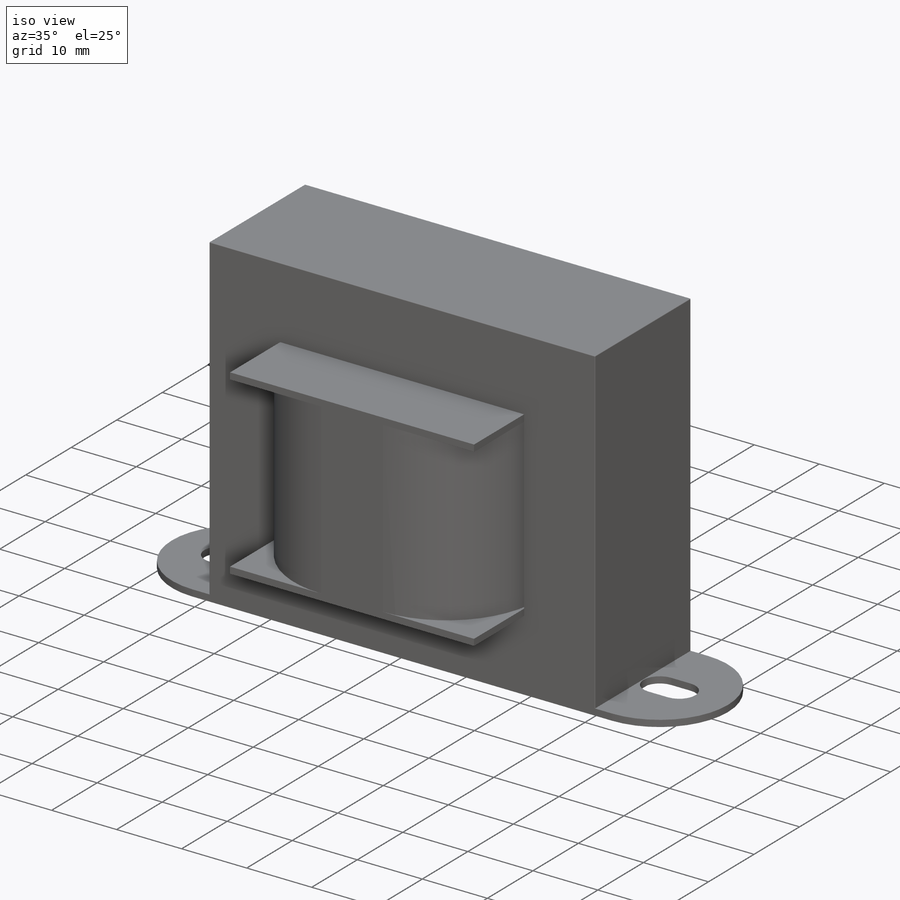
[diagram: iso view]
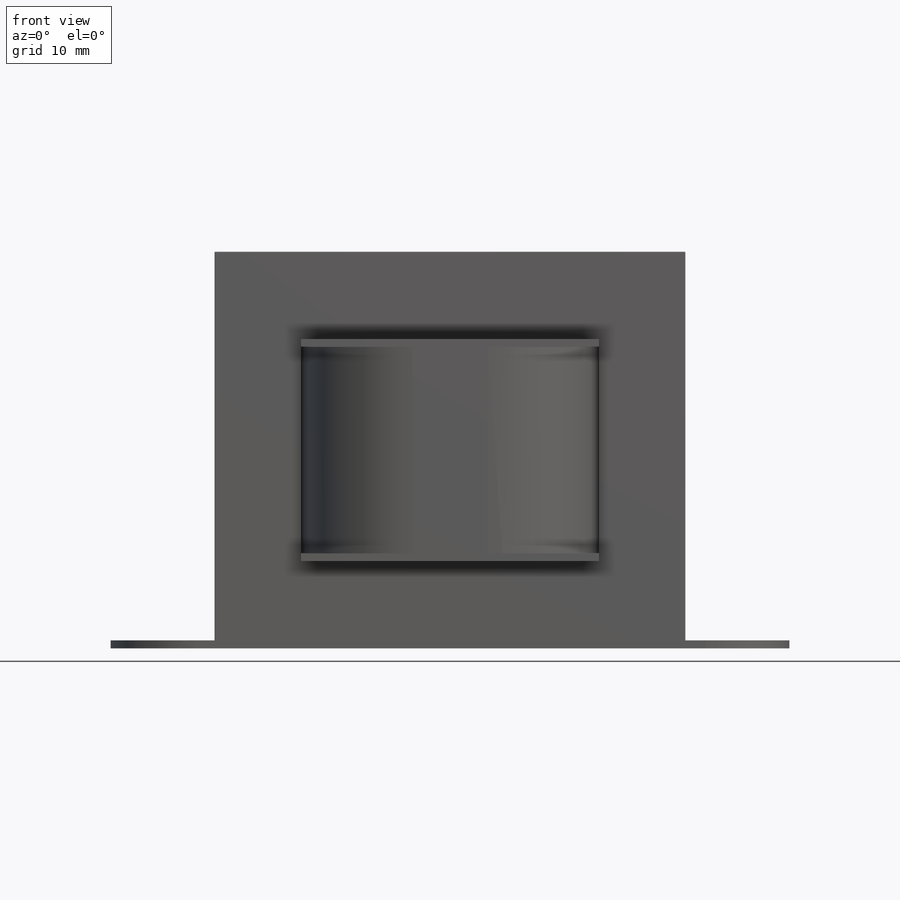
[diagram: front view]
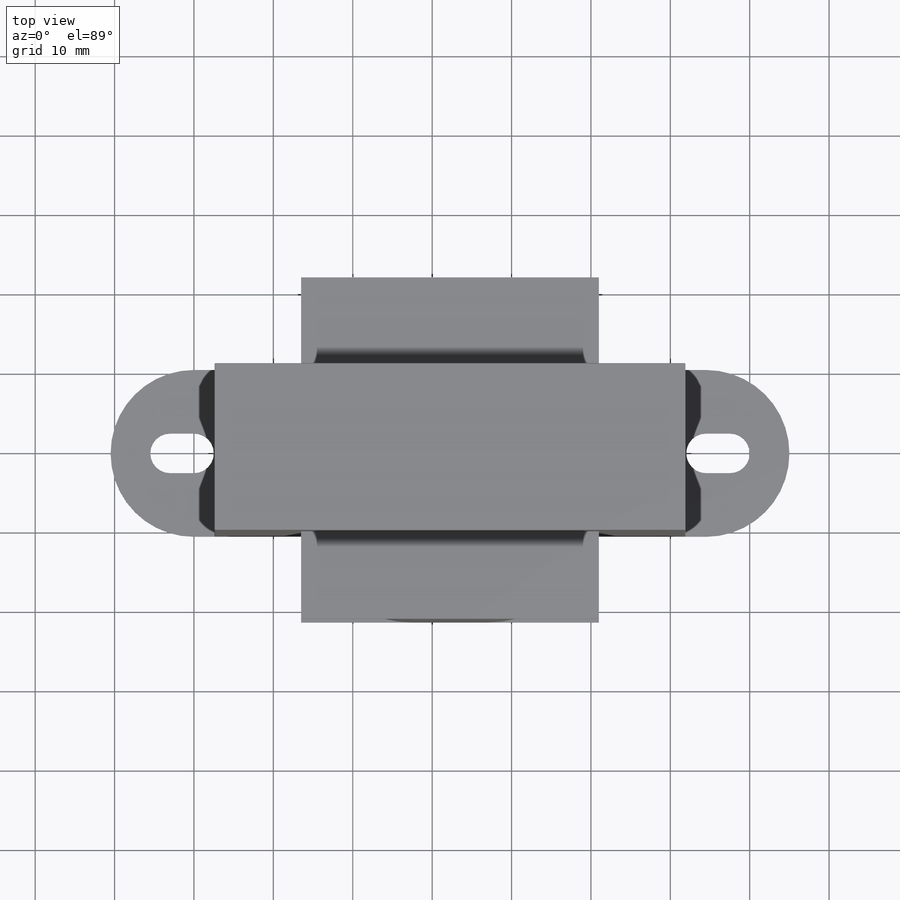
[diagram: top view]
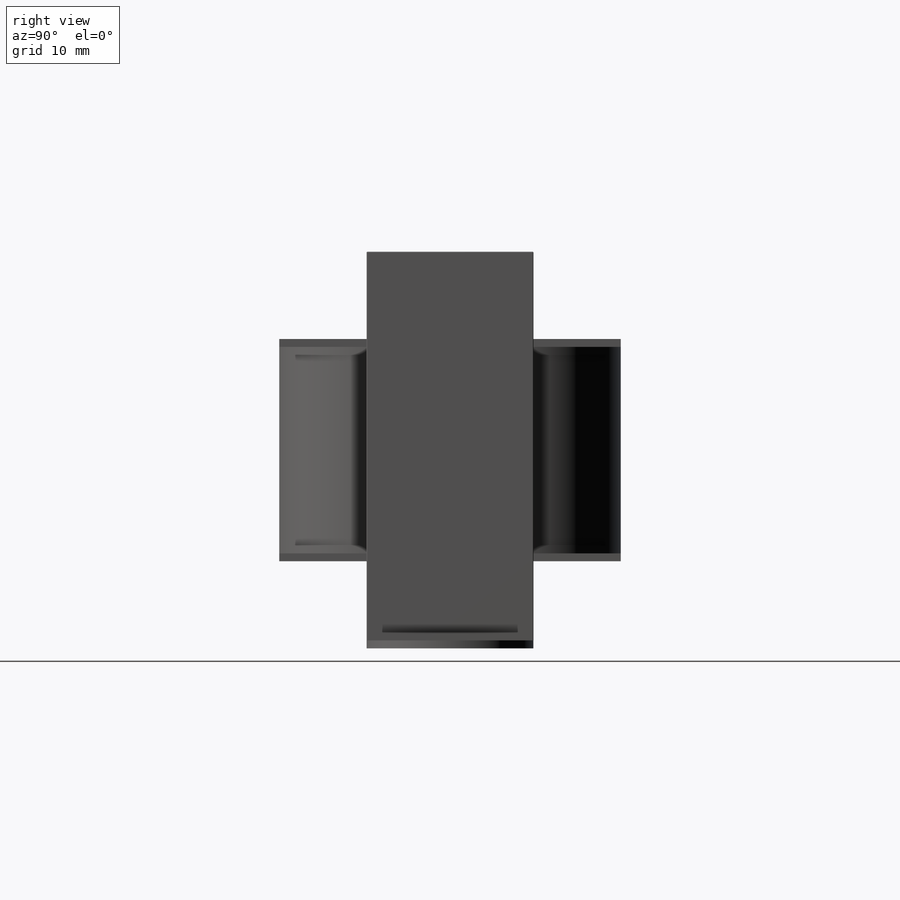
[diagram: right view]
SOLIDWORKS PART (.sldprt)
format: sldprt  version: not decoded by parser v0  size: 308,736 bytes
history: native  units: mm
features: sketch x8, extrude x5, cut_extrude x2, material x1, plane x1, fillet x1 (+12 scaffold rows collapsed)
feature tree (30):
  scaffold x12  (default folders/planes/origin — collapsed)
  material  "Material <not specified>"
  sketch  "Sketch1"  dims[D1=2.6mm D2=1.0mm D3=59.3mm D4=48.97mm]
  extrude  "Base-Extrude"  Depth=21mm
  sketch  "Sketch2"  dims[c1.D1=10.5mm c1.D4=10.5mm c1.D5=10.5mm c2.D1=10.5mm c2.D2=10.5mm c2.D3=64.5mm]
  extrude  "Boss-Extrude1"  Depth=1mm
  sketch  "Sketch3"  dims[c1.D1=5.0mm c1.D3=5.0mm c1.D4=5.0mm c1.D5=5.0mm c1.D7=2.5mm c1.D2=~5.572626mm c1.D6=5.5mm c2.D7=70.0mm c2.D2=8.0mm]
  cut_extrude  "Cut-Extrude1"  Depth=10mm
  plane  "Plane4"  Offset=25mm
  sketch  "Sketch4"  dims[D5=14.0mm D1=21.5mm D2=21.5mm D3=37.5mm D4=18.75mm]
  extrude  "Boss-Extrude2"  Depth=26mm
  sketch  "Sketch5"
  cut_extrude  "Cut-Extrude2"  Depth=26mm
  sketch  "Sketch6"
  extrude  "Boss-Extrude3"  Depth=1mm
  sketch  "Sketch7"
  extrude  "Boss-Extrude4"  Depth=1mm
  fillet  "Fillet1"  Radius=0.1mm
  sketch  "Component_Outline"
decode coverage: 12 of 16 modeling features carry decoded parameters
note: ~ marks probable driven/reference dimensions
note: suppression state not decoded; provenance and decode notes live in map.json
